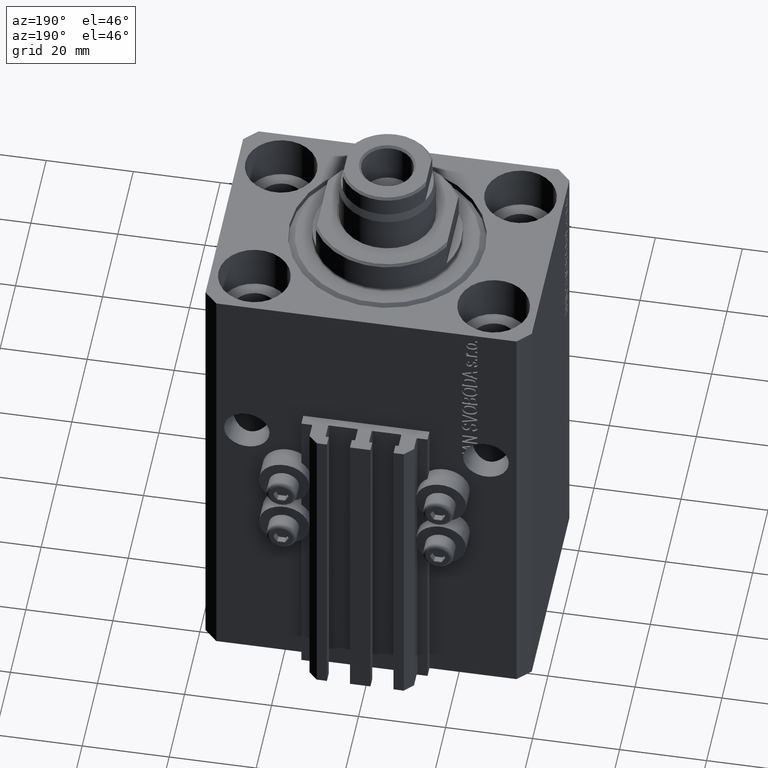
[diagram: clean part render]
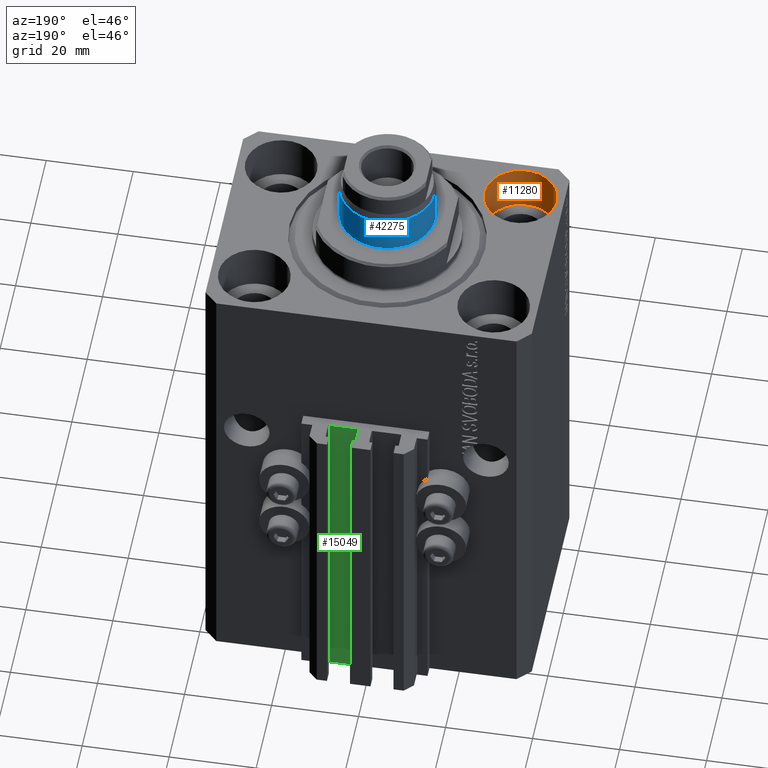
[diagram: same view with three faces highlighted in distinct colors, each labeled with its STEP entity id]
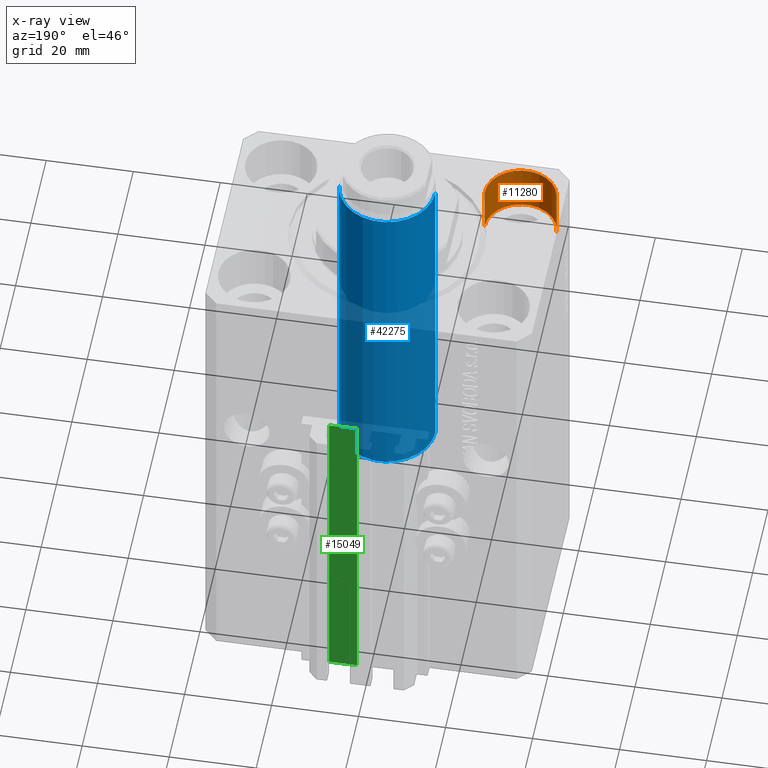
[diagram: x-ray of the same camera — body ghosted, the three highlighted faces saturated]
A machine part, auxiliary view with three faces highlighted in distinct colors.
The next image is the same camera in x-ray (body ghosted, the three faces saturated) — at least one of them is partly hidden behind the body in this view.
Their STEP definitions:

[orange] entity #11280 — the highlighted cylindrical surface (edge-blend (fillet) strip) has radius 8.25 mm, axis along (0, 0, 1).
#1194 = CARTESIAN_POINT ( 'NONE',  ( -27.50000000000000355, -17.50000000000000000, -11.00000000000000000 ) ) ;
#2857 = CARTESIAN_POINT ( 'NONE',  ( -27.50000000000000355, -17.50000000000000000, -11.00000000000000000 ) ) ;
#2969 = EDGE_LOOP ( 'NONE', ( #43847, #18639, #20514, #41974 ) ) ;
#3771 = VERTEX_POINT ( 'NONE', #44218 ) ;
#4537 = CIRCLE ( 'NONE', #19446, 8.250000000000000000 ) ;
#7075 = CARTESIAN_POINT ( 'NONE',  ( -35.75000000000000711, -17.50000000000000000, -11.00000000000000000 ) ) ;
#7513 = DIRECTION ( 'NONE',  ( -0.000000000000000000, -0.000000000000000000, 1.000000000000000000 ) ) ;
#9740 = EDGE_CURVE ( 'NONE', #3771, #28869, #18491, .T. ) ;
#11280 = ADVANCED_FACE ( 'NONE', ( #32319 ), #28577, .F. ) ;
#13918 = VERTEX_POINT ( 'NONE', #16883 ) ;
#14140 = AXIS2_PLACEMENT_3D ( 'NONE', #1194, #18730, #39794 ) ;
#16141 = VERTEX_POINT ( 'NONE', #41783 ) ;
#16883 = CARTESIAN_POINT ( 'NONE',  ( -35.75000000000000711, -17.50000000000000000, 0.000000000000000000 ) ) ;
#17800 = DIRECTION ( 'NONE',  ( 1.000000000000000000, 0.000000000000000000, 0.000000000000000000 ) ) ;
#17801 = CARTESIAN_POINT ( 'NONE',  ( -19.25000000000000355, -17.50000000000000000, -11.00000000000000000 ) ) ;
#17836 = CIRCLE ( 'NONE', #14140, 8.250000000000000000 ) ;
#18491 = LINE ( 'NONE', #17801, #30171 ) ;
#18639 = ORIENTED_EDGE ( 'NONE', *, *, #22620, .T. ) ;
#18730 = DIRECTION ( 'NONE',  ( 0.000000000000000000, 0.000000000000000000, 1.000000000000000000 ) ) ;
#19446 = AXIS2_PLACEMENT_3D ( 'NONE', #31309, #35905, #45345 ) ;
#20514 = ORIENTED_EDGE ( 'NONE', *, *, #45971, .T. ) ;
#22620 = EDGE_CURVE ( 'NONE', #16141, #13918, #43091, .T. ) ;
#28577 = CYLINDRICAL_SURFACE ( 'NONE', #41379, 8.250000000000000000 ) ;
#28869 = VERTEX_POINT ( 'NONE', #36550 ) ;
#30171 = VECTOR ( 'NONE', #7513, 1000.000000000000000 ) ;
#31309 = CARTESIAN_POINT ( 'NONE',  ( -27.50000000000000355, -17.50000000000000000, 0.000000000000000000 ) ) ;
#32319 = FACE_OUTER_BOUND ( 'NONE', #2969, .T. ) ;
#32801 = DIRECTION ( 'NONE',  ( -0.000000000000000000, -0.000000000000000000, 1.000000000000000000 ) ) ;
#35691 = VECTOR ( 'NONE', #32801, 1000.000000000000000 ) ;
#35905 = DIRECTION ( 'NONE',  ( 0.000000000000000000, 0.000000000000000000, 1.000000000000000000 ) ) ;
#36550 = CARTESIAN_POINT ( 'NONE',  ( -19.25000000000000355, -17.50000000000000000, 0.000000000000000000 ) ) ;
#38632 = DIRECTION ( 'NONE',  ( -0.000000000000000000, -0.000000000000000000, 1.000000000000000000 ) ) ;
#39794 = DIRECTION ( 'NONE',  ( 1.000000000000000000, 0.000000000000000000, 0.000000000000000000 ) ) ;
#41379 = AXIS2_PLACEMENT_3D ( 'NONE', #2857, #38632, #17800 ) ;
#41783 = CARTESIAN_POINT ( 'NONE',  ( -35.75000000000000711, -17.50000000000000000, -11.00000000000000000 ) ) ;
#41974 = ORIENTED_EDGE ( 'NONE', *, *, #9740, .F. ) ;
#42944 = EDGE_CURVE ( 'NONE', #16141, #3771, #17836, .T. ) ;
#43091 = LINE ( 'NONE', #7075, #35691 ) ;
#43847 = ORIENTED_EDGE ( 'NONE', *, *, #42944, .F. ) ;
#44218 = CARTESIAN_POINT ( 'NONE',  ( -19.25000000000000355, -17.50000000000000000, -11.00000000000000000 ) ) ;
#45345 = DIRECTION ( 'NONE',  ( 1.000000000000000000, 0.000000000000000000, 0.000000000000000000 ) ) ;
#45971 = EDGE_CURVE ( 'NONE', #13918, #28869, #4537, .T. ) ;

[blue] entity #42275 — the highlighted cylindrical surface (partial cylindrical patch) has radius 11 mm, axis along (0, 0, 1).
#945 = CARTESIAN_POINT ( 'NONE',  ( 38.00000000000000711, 0.000000000000000000, -11.00000000000000000 ) ) ;
#2317 = ORIENTED_EDGE ( 'NONE', *, *, #15308, .F. ) ;
#3961 = DIRECTION ( 'NONE',  ( 0.000000000000000000, 0.000000000000000000, -1.000000000000000000 ) ) ;
#5939 = CIRCLE ( 'NONE', #15654, 11.00000000000000000 ) ;
#7214 = LINE ( 'NONE', #21487, #8511 ) ;
#7920 = LINE ( 'NONE', #11649, #39265 ) ;
#8511 = VECTOR ( 'NONE', #32256, 1000.000000000000000 ) ;
#9737 = ORIENTED_EDGE ( 'NONE', *, *, #10919, .T. ) ;
#10053 = EDGE_LOOP ( 'NONE', ( #2317, #15999, #9737, #29676 ) ) ;
#10919 = EDGE_CURVE ( 'NONE', #38122, #14357, #7214, .T. ) ;
#11649 = CARTESIAN_POINT ( 'NONE',  ( 105.0935156901813343, 1.347111479062088405E-15, 11.00000000000000000 ) ) ;
#14357 = VERTEX_POINT ( 'NONE', #39039 ) ;
#14484 = CYLINDRICAL_SURFACE ( 'NONE', #18577, 11.00000000000000000 ) ;
#15308 = EDGE_CURVE ( 'NONE', #42828, #36751, #7920, .T. ) ;
#15654 = AXIS2_PLACEMENT_3D ( 'NONE', #37871, #44897, #15658 ) ;
#15658 = DIRECTION ( 'NONE',  ( 0.000000000000000000, 0.000000000000000000, -1.000000000000000000 ) ) ;
#15999 = ORIENTED_EDGE ( 'NONE', *, *, #45715, .T. ) ;
#18577 = AXIS2_PLACEMENT_3D ( 'NONE', #25261, #36012, #3961 ) ;
#21487 = CARTESIAN_POINT ( 'NONE',  ( 105.0935156901813343, 0.000000000000000000, -11.00000000000000000 ) ) ;
#23197 = CIRCLE ( 'NONE', #35152, 11.00000000000000000 ) ;
#25261 = CARTESIAN_POINT ( 'NONE',  ( 105.0935156901813343, 0.000000000000000000, 0.000000000000000000 ) ) ;
#25482 = DIRECTION ( 'NONE',  ( 1.000000000000000000, -0.000000000000000000, -0.000000000000000000 ) ) ;
#27117 = EDGE_CURVE ( 'NONE', #36751, #14357, #5939, .T. ) ;
#27842 = DIRECTION ( 'NONE',  ( 1.000000000000000000, -0.000000000000000000, -0.000000000000000000 ) ) ;
#29676 = ORIENTED_EDGE ( 'NONE', *, *, #27117, .F. ) ;
#31181 = CARTESIAN_POINT ( 'NONE',  ( 38.00000000000000711, 1.347111479062088405E-15, 11.00000000000000000 ) ) ;
#31589 = DIRECTION ( 'NONE',  ( 0.000000000000000000, 0.000000000000000000, -1.000000000000000000 ) ) ;
#32256 = DIRECTION ( 'NONE',  ( 1.000000000000000000, -0.000000000000000000, -0.000000000000000000 ) ) ;
#33670 = CARTESIAN_POINT ( 'NONE',  ( 115.9999999999994031, 0.000000000000000000, 11.00000000000000000 ) ) ;
#35152 = AXIS2_PLACEMENT_3D ( 'NONE', #42574, #27842, #31589 ) ;
#36012 = DIRECTION ( 'NONE',  ( 1.000000000000000000, -0.000000000000000000, -0.000000000000000000 ) ) ;
#36702 = FACE_OUTER_BOUND ( 'NONE', #10053, .T. ) ;
#36751 = VERTEX_POINT ( 'NONE', #33670 ) ;
#37871 = CARTESIAN_POINT ( 'NONE',  ( 115.9999999999994031, 0.000000000000000000, 0.000000000000000000 ) ) ;
#38122 = VERTEX_POINT ( 'NONE', #945 ) ;
#39039 = CARTESIAN_POINT ( 'NONE',  ( 115.9999999999994031, 1.347111479062088405E-15, -11.00000000000000000 ) ) ;
#39265 = VECTOR ( 'NONE', #25482, 1000.000000000000000 ) ;
#42275 = ADVANCED_FACE ( 'NONE', ( #36702 ), #14484, .T. ) ;
#42574 = CARTESIAN_POINT ( 'NONE',  ( 38.00000000000000711, 0.000000000000000000, 0.000000000000000000 ) ) ;
#42828 = VERTEX_POINT ( 'NONE', #31181 ) ;
#44897 = DIRECTION ( 'NONE',  ( 1.000000000000000000, -0.000000000000000000, -0.000000000000000000 ) ) ;
#45715 = EDGE_CURVE ( 'NONE', #42828, #38122, #23197, .T. ) ;

[green] entity #15049 — the highlighted planar face has unit normal (-0, 1, 0).
#1206 = AXIS2_PLACEMENT_3D ( 'NONE', #10616, #18092, #35655 ) ;
#2327 = ORIENTED_EDGE ( 'NONE', *, *, #26220, .T. ) ;
#4103 = DIRECTION ( 'NONE',  ( -1.000000000000000000, -1.084202172485504828E-15, 0.000000000000000000 ) ) ;
#6796 = CARTESIAN_POINT ( 'NONE',  ( 8.199999999999999289, 29.50000000000000711, -110.0000000000000000 ) ) ;
#8028 = CARTESIAN_POINT ( 'NONE',  ( 1.800000000000000933, 29.50000000000000000, -110.0000000000000000 ) ) ;
#10616 = CARTESIAN_POINT ( 'NONE',  ( 8.199999999999999289, 29.50000000000000711, -110.0000000000000000 ) ) ;
#10926 = CARTESIAN_POINT ( 'NONE',  ( 1.800000000000000933, 29.50000000000000000, -33.00000000000000000 ) ) ;
#12804 = EDGE_CURVE ( 'NONE', #33477, #18635, #19282, .T. ) ;
#12979 = FACE_OUTER_BOUND ( 'NONE', #42008, .T. ) ;
#15049 = ADVANCED_FACE ( 'NONE', ( #12979 ), #27258, .T. ) ;
#15485 = EDGE_CURVE ( 'NONE', #38833, #15936, #38609, .T. ) ;
#15936 = VERTEX_POINT ( 'NONE', #10926 ) ;
#18092 = DIRECTION ( 'NONE',  ( -1.084202172485504828E-15, 1.000000000000000000, 0.000000000000000000 ) ) ;
#18226 = LINE ( 'NONE', #19149, #25315 ) ;
#18635 = VERTEX_POINT ( 'NONE', #8028 ) ;
#19149 = CARTESIAN_POINT ( 'NONE',  ( 1.800000000000000933, 29.50000000000000000, -110.0000000000000000 ) ) ;
#19282 = LINE ( 'NONE', #36147, #39972 ) ;
#23155 = EDGE_CURVE ( 'NONE', #33477, #38833, #34127, .T. ) ;
#24467 = VECTOR ( 'NONE', #45123, 1000.000000000000000 ) ;
#25315 = VECTOR ( 'NONE', #25724, 1000.000000000000000 ) ;
#25724 = DIRECTION ( 'NONE',  ( 0.000000000000000000, 0.000000000000000000, 1.000000000000000000 ) ) ;
#26220 = EDGE_CURVE ( 'NONE', #18635, #15936, #18226, .T. ) ;
#27258 = PLANE ( 'NONE',  #1206 ) ;
#31600 = CARTESIAN_POINT ( 'NONE',  ( 8.199999999999999289, 29.50000000000000711, -33.00000000000000000 ) ) ;
#31833 = VECTOR ( 'NONE', #35335, 1000.000000000000000 ) ;
#33477 = VERTEX_POINT ( 'NONE', #6796 ) ;
#34127 = LINE ( 'NONE', #35040, #24467 ) ;
#35040 = CARTESIAN_POINT ( 'NONE',  ( 8.199999999999999289, 29.50000000000000711, -110.0000000000000000 ) ) ;
#35233 = ORIENTED_EDGE ( 'NONE', *, *, #23155, .F. ) ;
#35335 = DIRECTION ( 'NONE',  ( -1.000000000000000000, -1.084202172485504828E-15, 0.000000000000000000 ) ) ;
#35655 = DIRECTION ( 'NONE',  ( -1.000000000000000000, -1.084202172485504828E-15, 0.000000000000000000 ) ) ;
#35762 = ORIENTED_EDGE ( 'NONE', *, *, #15485, .F. ) ;
#36147 = CARTESIAN_POINT ( 'NONE',  ( 8.199999999999999289, 29.50000000000000711, -110.0000000000000000 ) ) ;
#38609 = LINE ( 'NONE', #31600, #31833 ) ;
#38833 = VERTEX_POINT ( 'NONE', #42891 ) ;
#39972 = VECTOR ( 'NONE', #4103, 1000.000000000000000 ) ;
#40939 = ORIENTED_EDGE ( 'NONE', *, *, #12804, .T. ) ;
#42008 = EDGE_LOOP ( 'NONE', ( #35762, #35233, #40939, #2327 ) ) ;
#42891 = CARTESIAN_POINT ( 'NONE',  ( 8.199999999999999289, 29.50000000000000711, -33.00000000000000000 ) ) ;
#45123 = DIRECTION ( 'NONE',  ( 0.000000000000000000, 0.000000000000000000, 1.000000000000000000 ) ) ;